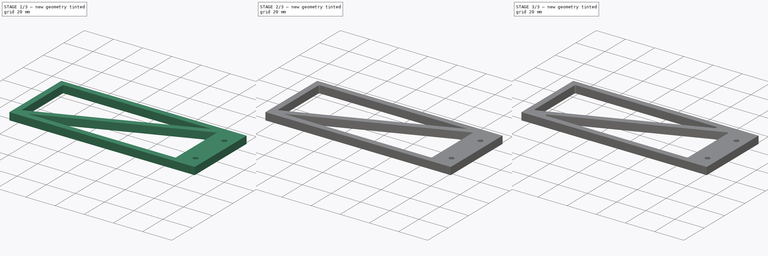
[diagram: build sequence overview — one tinted view per stage of 3, left to right]
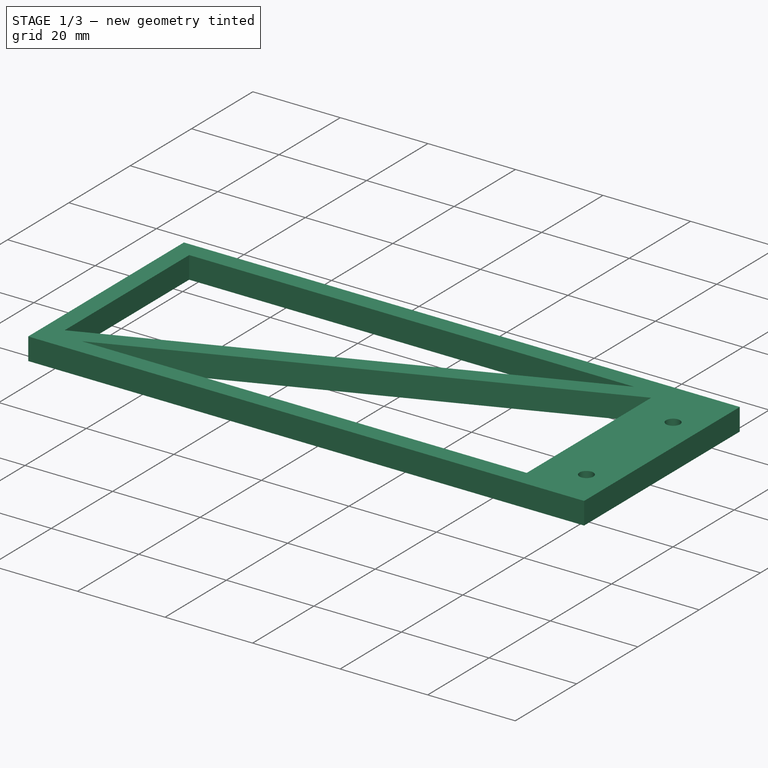
[diagram: stage 1 of 3 — iso view after this stage's code; geometry added in this stage tinted green]
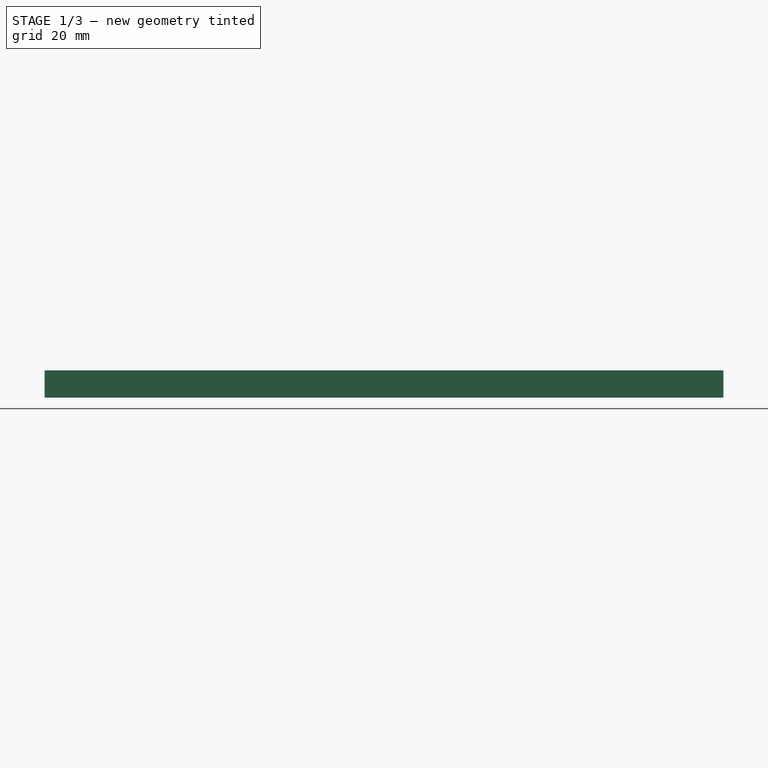
[diagram: stage 1 of 3 — front view after this stage's code; geometry added in this stage tinted green]
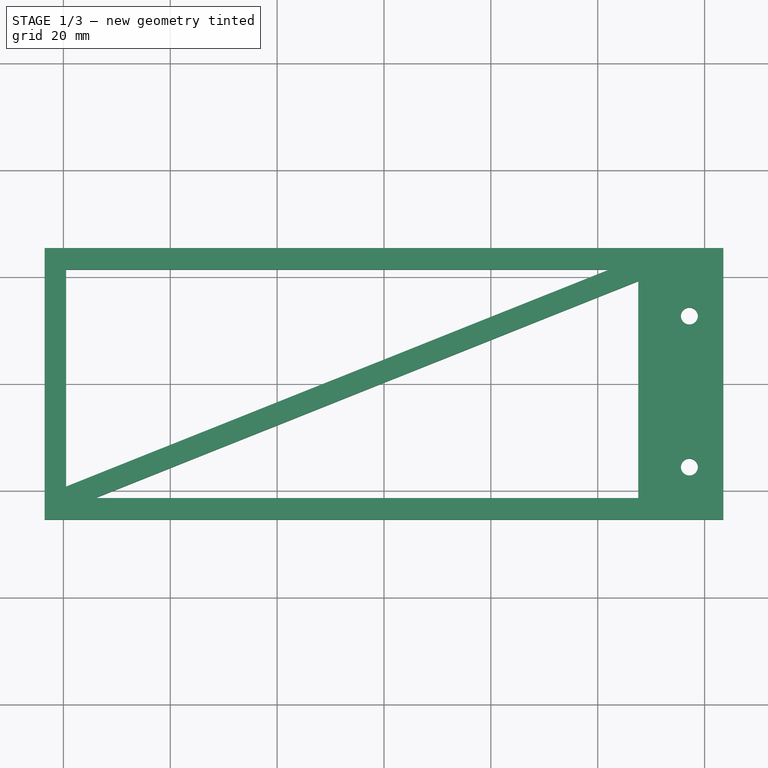
[diagram: stage 1 of 3 — top view after this stage's code; geometry added in this stage tinted green]
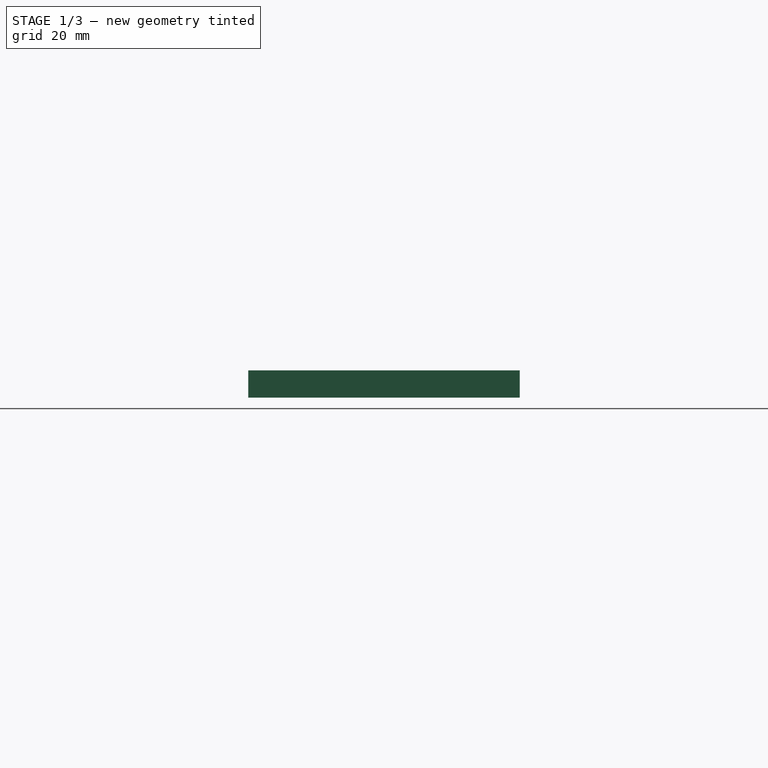
[diagram: stage 1 of 3 — right view after this stage's code; geometry added in this stage tinted green]
FCSTD DOCUMENT  (FreeCAD 1.0R39109 (Git))
Label: side_base
License: All rights reserved
LicenseURL: http://en.wikipedia.org/wiki/All_rights_reserved
objects: PartDesign::Fillet×3, Sketcher::SketchObject×2, PartDesign::Pad×1, PartDesign::Pocket×1, PartDesign::Body×1
note: 20 computed .brp shape members not serialized (recipe doc carries the construction recipe); baked Part::Feature solids carry a one-line shape summary decoded from their .brp

FEATURE [Sketcher::SketchObject] Sketch
  ArcFitTolerance = 1e-06
  AttachmentSupport = -> [XY_Plane]
  FullyConstrained = true
  MakeInternals = false
  MapMode = 5
  sketch-geometry (5):
    g0: LineSegment StartX=-63.5 StartY=-25.4 StartZ=0 EndX=63.5 EndY=-25.4 EndZ=0
    g1: LineSegment StartX=63.5 StartY=-25.4 StartZ=0 EndX=63.5 EndY=25.4 EndZ=0
    g2: LineSegment StartX=63.5 StartY=25.4 StartZ=0 EndX=-63.5 EndY=25.4 EndZ=0
    g3: LineSegment StartX=-63.5 StartY=25.4 StartZ=0 EndX=-63.5 EndY=-25.4 EndZ=0
    g4: GeomPoint [constr] X=0 Y=0 Z=0
  constraints (12):
    c: Coincident(g0,g1)
    c: Coincident(g1,g2)
    c: Coincident(g2,g3)
    c: Coincident(g3,g0)
    c: Horizontal(g0)
    c: Horizontal(g2)
    c: Vertical(g1)
    c: Vertical(g3)
    c: Symmetric(g2,g0,g4)
    c: Distance(g1,g3) = 127
    c: Distance(g0,g2) = 50.8
    c: Coincident(g4,g-1)
FEATURE [PartDesign::Pad] Pad
  Direction = (0,0,1)
  Length = 5.08
  Length2 = 10
  Profile = -> Sketch
  ReferenceAxis = -> Sketch [N_Axis]
  Suppressed = false
  Type = 0
FEATURE [Sketcher::SketchObject] Sketch001
  ArcFitTolerance = 1e-06
  AttachmentSupport = -> [Pad]
  ExternalGeometry = -> [Pad]
  FullyConstrained = false
  MakeInternals = false
  MapMode = 5
  Placement = pos=(0,0,5.08) rot=(0,0,1;0rad)
  sketch-geometry (19):
    g0: LineSegment [constr] StartX=63.5 StartY=-25.4 StartZ=0 EndX=57.15 EndY=-25.4 EndZ=0
    g1: LineSegment [constr] StartX=57.15 StartY=-25.4 StartZ=0 EndX=57.15 EndY=-15.5673 EndZ=0
    g2: LineSegment [constr] StartX=57.15 StartY=-15.5673 StartZ=0 EndX=57.15 EndY=12.7 EndZ=0
    g3: LineSegment [constr] StartX=57.15 StartY=12.7 StartZ=0 EndX=57.15 EndY=25.4 EndZ=0
    g4: Circle CenterX=57.15 CenterY=12.7 CenterZ=0 NormalX=0 NormalY=0 NormalZ=1 AngleXU=0 Radius=1.5875
    g5: Circle CenterX=57.15 CenterY=-15.5673 CenterZ=0 NormalX=0 NormalY=0 NormalZ=1 AngleXU=0 Radius=1.5875
    g6: LineSegment [constr] StartX=57.15 StartY=-25.4 StartZ=0 EndX=51.5983 EndY=-25.4 EndZ=0
    g7: LineSegment [constr] StartX=51.5983 StartY=-25.4 StartZ=0 EndX=47.5851 EndY=-21.1328 EndZ=0
    g8: LineSegment [constr] StartX=-63.5 StartY=-25.4 StartZ=0 EndX=-59.4868 EndY=-21.3868 EndZ=0
    g9: LineSegment [constr] StartX=-63.5 StartY=25.4 StartZ=0 EndX=-59.4868 EndY=21.3868 EndZ=0
    g10: LineSegment [constr] StartX=47.5851 StartY=-21.1328 StartZ=0 EndX=47.5851 EndY=19.226 EndZ=0
    g11: LineSegment [constr] StartX=47.5851 StartY=25.4 StartZ=0 EndX=47.5851 EndY=21.3868 EndZ=0
    g12: LineSegment StartX=-54.0779 StartY=-21.3868 StartZ=0 EndX=47.5851 EndY=-21.3868 EndZ=0
    g13: LineSegment StartX=47.5851 StartY=-21.3868 StartZ=0 EndX=47.5851 EndY=19.226 EndZ=0
    g14: LineSegment StartX=42.1761 StartY=21.3868 StartZ=0 EndX=-59.4868 EndY=21.3868 EndZ=0
    g15: LineSegment StartX=-59.4868 StartY=21.3868 StartZ=0 EndX=-59.4868 EndY=-19.226 EndZ=0
    g16: LineSegment StartX=-59.4868 StartY=-19.226 StartZ=0 EndX=42.1761 EndY=21.3868 EndZ=0
    g17: LineSegment StartX=-54.0779 StartY=-21.3868 StartZ=0 EndX=47.5851 EndY=19.226 EndZ=0
    g18: LineSegment [constr] StartX=47.5851 StartY=21.3868 StartZ=0 EndX=47.5851 EndY=25.4 EndZ=0
  constraints (47):
    c: Distance(g0) = 6.35
    c: Coincident(g0,g-5)
    c: PointOnObject(g0,g-5)
    c: Coincident(g1,g0)
    c: Vertical(g1)
    c: Block(g1)
    c: Coincident(g2,g1)
    c: Vertical(g2)
    c: Coincident(g3,g2)
    c: PointOnObject(g3,g-3)
    c: Vertical(g3)
    c: DistanceY(g3,g3) = 12.7
    c: Diameter(g4) = 3.175
    c: Coincident(g4,g2)
    c: Diameter(g5) = 3.175
    c: Coincident(g5,g1)
    c: Coincident(g6,g0)
    c: Horizontal(g6)
    c: Block(g6)
    c: DistanceX(g7,g7) = 4.0132
    c: DistanceY(g7,g7) = 4.2672
    c: Coincident(g7,g6)
    c: DistanceX(g8,g8) = 4.0132
    c: DistanceY(g8,g8) = 4.0132
    c: Coincident(g8,g-5)
    c: DistanceX(g9,g9) = 4.0132
    c: DistanceY(g9,g9) = 4.0132
    c: Coincident(g9,g-3)
    c: Coincident(g10,g7)
    c: PointOnObject(g18,g-3)
    c: Vertical(g10)
    c: DistanceX(g11,g11) = 0
    c: DistanceY(g11,g11) = 4.0132
    c: Coincident(g11,g18)
    c: Coincident(g12,g13)
    c: Coincident(g14,g15)
    c: Horizontal(g12)
    c: Horizontal(g14)
    c: Vertical(g13)
    c: Vertical(g15)
    c: PointOnObject(g17,g10)
    c: PointOnObject(g13,g17)
    c: Coincident(g12,g17)
    c: Coincident(g15,g16)
    c: Coincident(g14,g16)
    c: PointOnObject(g10,g13)
    c: PointOnObject(g18,g11)
FEATURE [PartDesign::Pocket] Pocket
  BaseFeature = -> Pad
  Direction = (0,0,-1)
  Length = 5
  Length2 = 5
  Profile = -> Sketch001
  ReferenceAxis = -> Sketch001 [N_Axis]
  Suppressed = false
  Type = 1
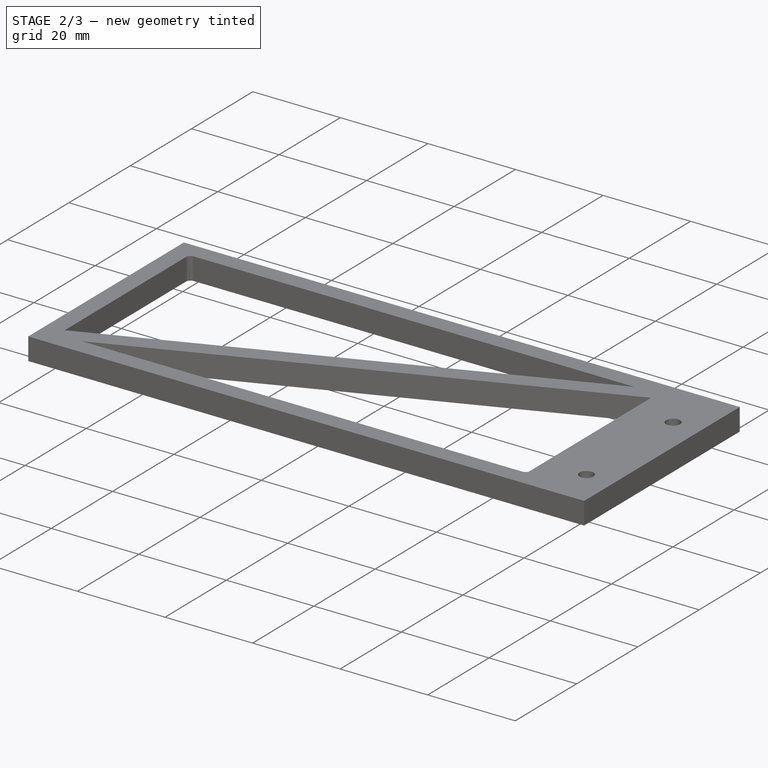
[diagram: stage 2 of 3 — iso view after this stage's code; geometry added in this stage tinted green]
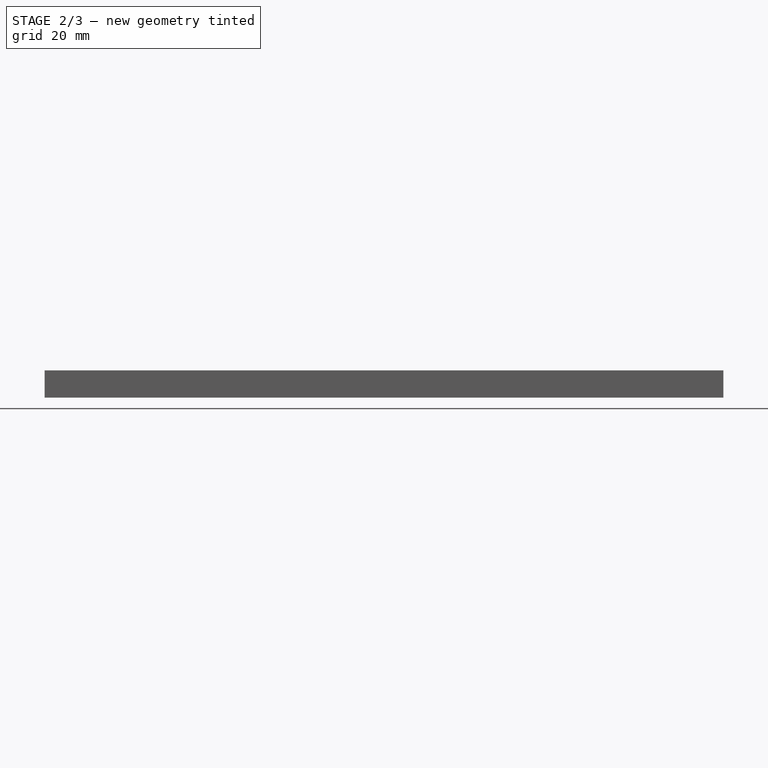
[diagram: stage 2 of 3 — front view after this stage's code; geometry added in this stage tinted green]
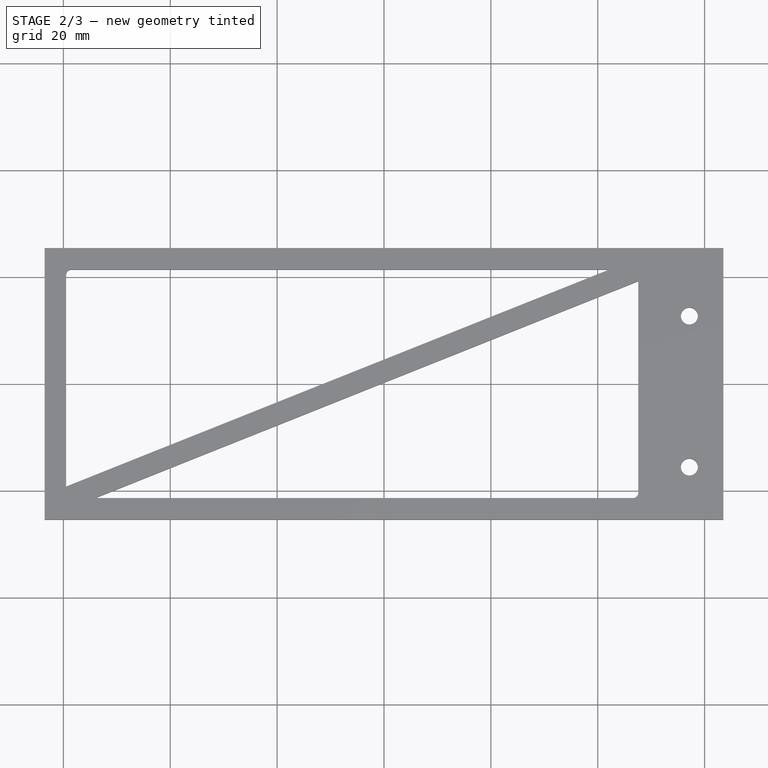
[diagram: stage 2 of 3 — top view after this stage's code; geometry added in this stage tinted green]
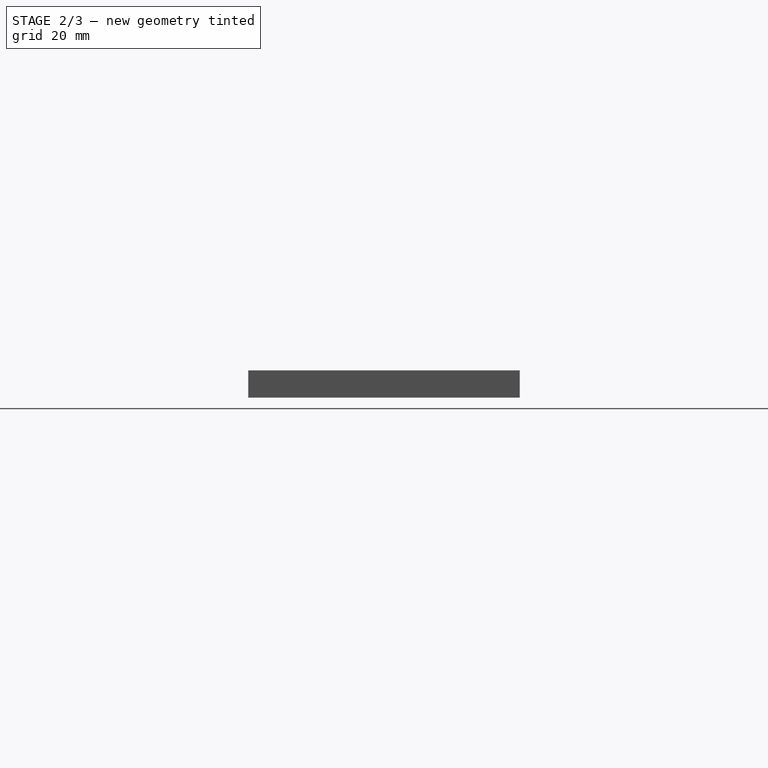
[diagram: stage 2 of 3 — right view after this stage's code; geometry added in this stage tinted green]
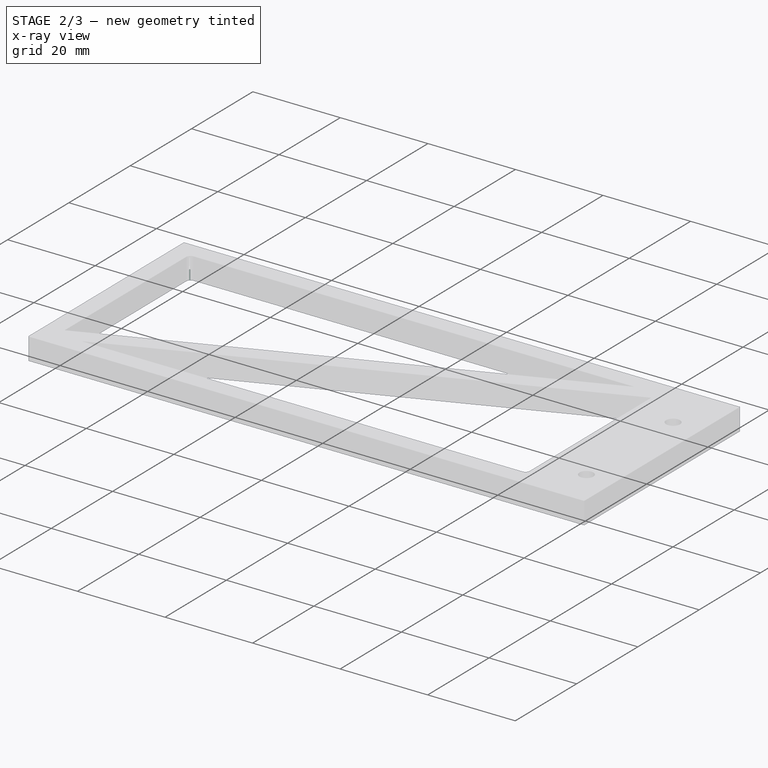
[diagram: stage 2 of 3 — x-ray composite at the iso view; earlier geometry ghosted, this stage's added geometry solid]
FEATURE [PartDesign::Fillet] Fillet
  Base = -> Pocket [Edge33,Edge29]
  BaseFeature = -> Pocket
  Radius = 0.999998
  SupportTransform = false
  Suppressed = false
  UseAllEdges = false
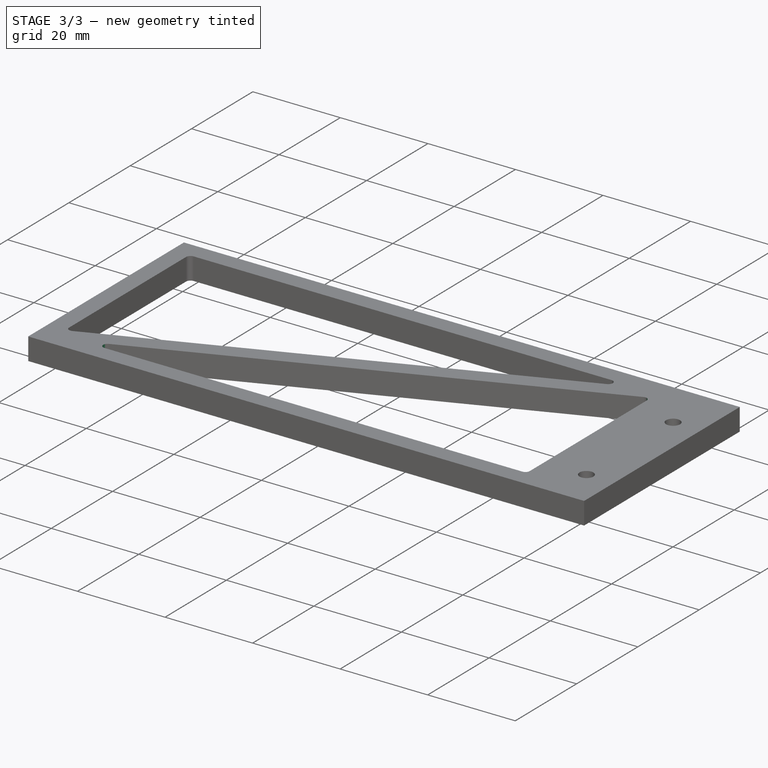
[diagram: stage 3 of 3 — iso view after this stage's code; geometry added in this stage tinted green]
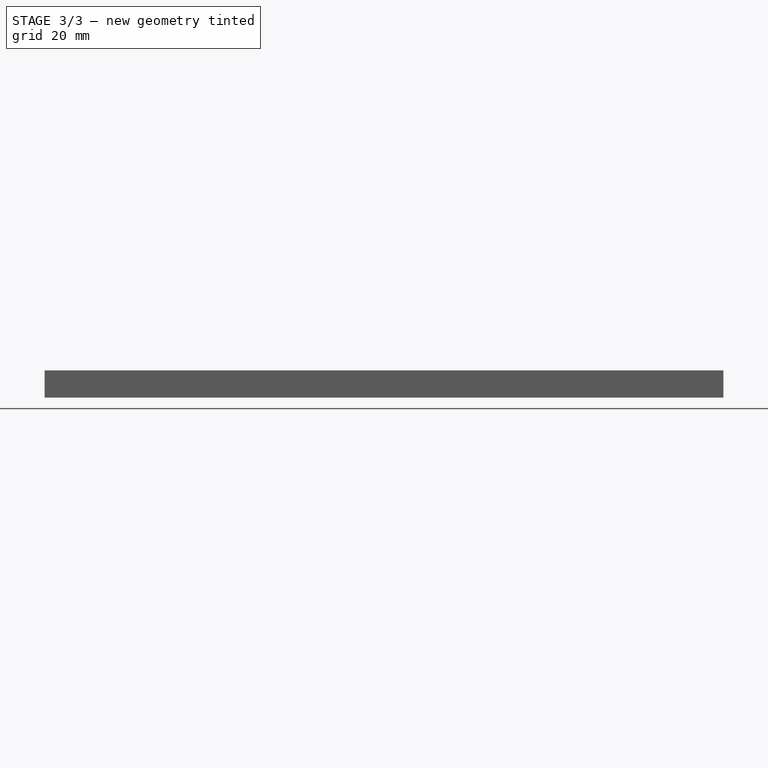
[diagram: stage 3 of 3 — front view after this stage's code; geometry added in this stage tinted green]
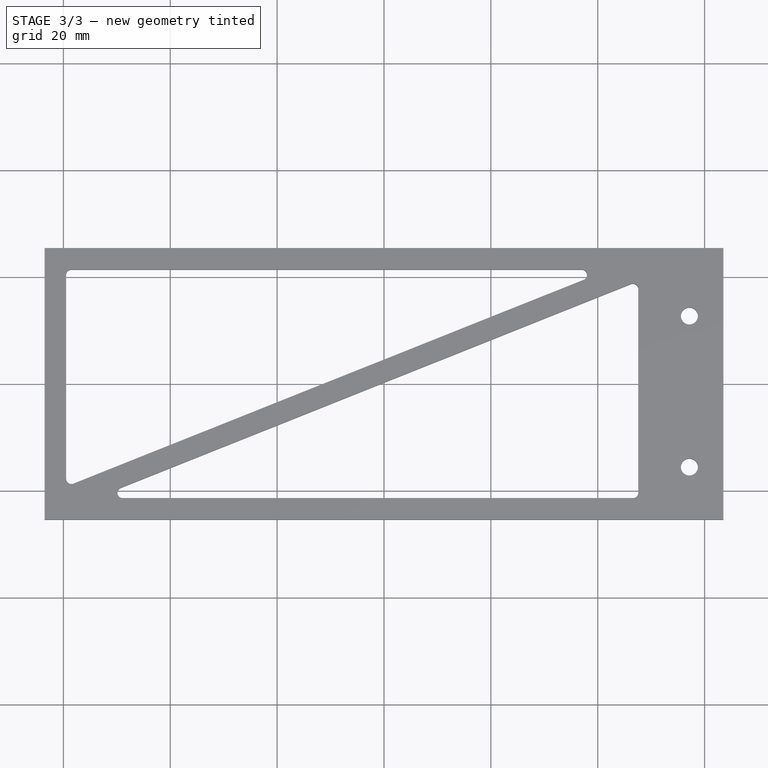
[diagram: stage 3 of 3 — top view after this stage's code; geometry added in this stage tinted green]
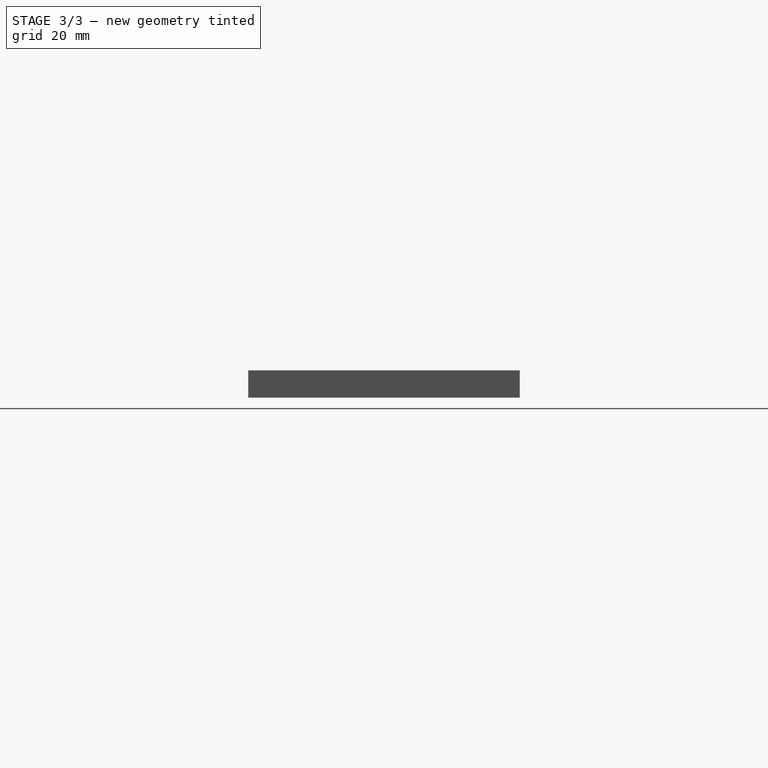
[diagram: stage 3 of 3 — right view after this stage's code; geometry added in this stage tinted green]
FEATURE [PartDesign::Fillet] Fillet001
  Base = -> Fillet [Edge17,Edge37]
  BaseFeature = -> Fillet
  Radius = 0.999998
  SupportTransform = false
  Suppressed = false
  UseAllEdges = false
FEATURE [PartDesign::Fillet] Fillet002
  Base = -> Fillet001 [Edge25,Edge47]
  BaseFeature = -> Fillet001
  Radius = 0.999998
  SupportTransform = false
  Suppressed = false
  UseAllEdges = false
FEATURE [PartDesign::Body] Body
  AllowCompound = false
  Group = -> [Sketch,Pad,Sketch001,Pocket,Fillet,Fillet001,Fillet002]
  Origin = -> Origin
  Tip = -> Fillet002
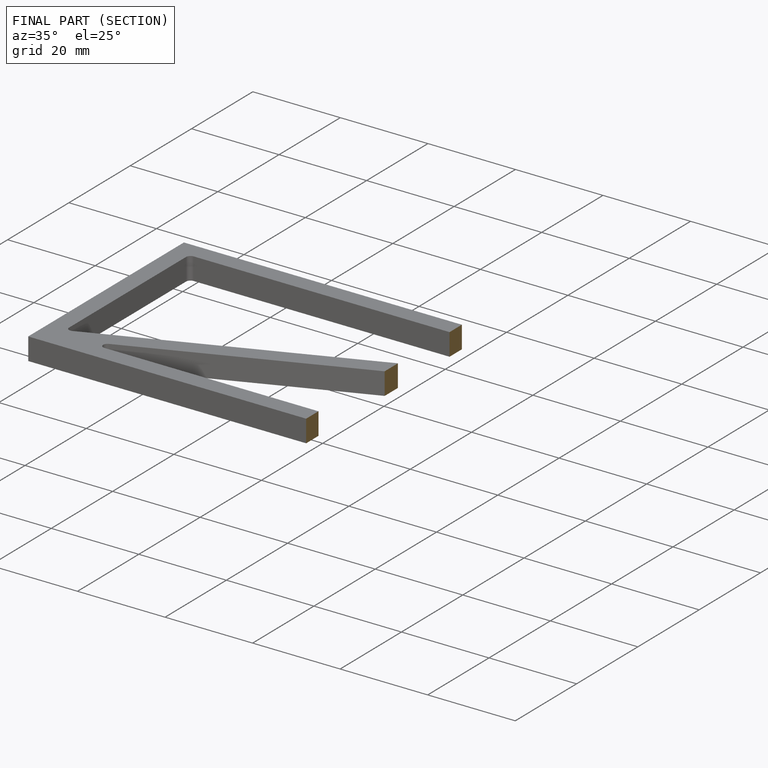
[diagram: finished part — half-section view (interior)]
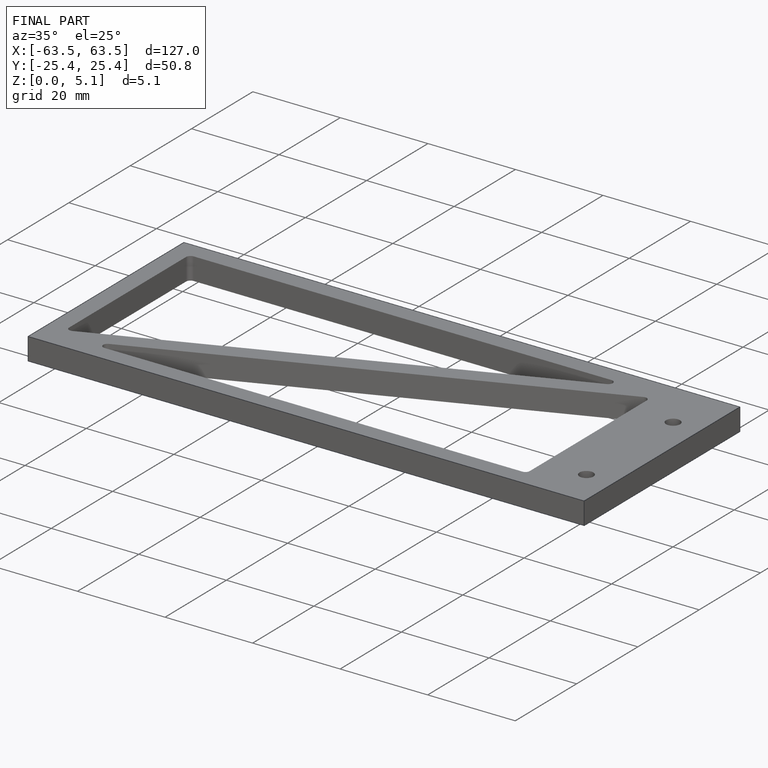
[diagram: finished part — iso view with bounding-box wireframe]
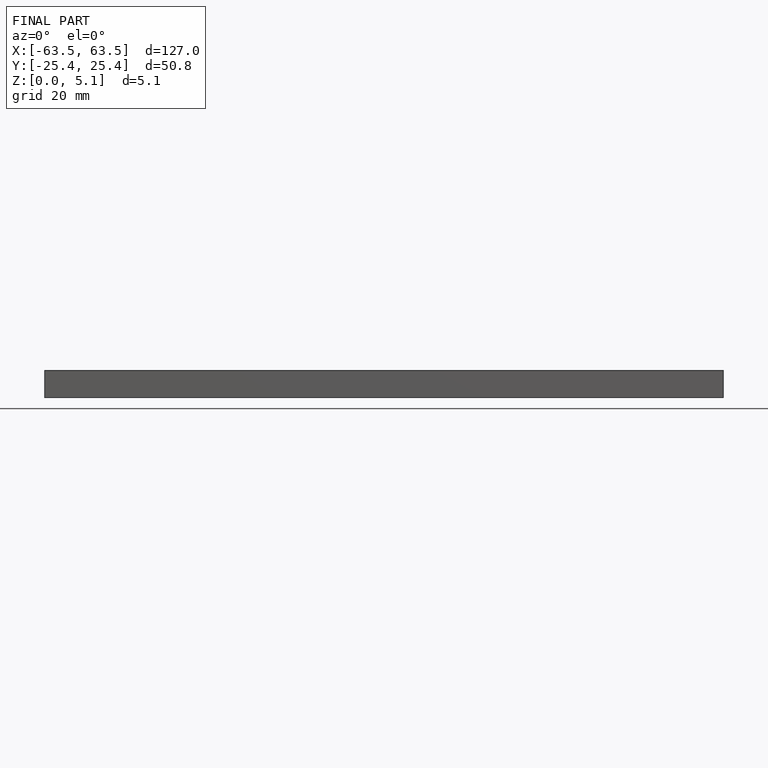
[diagram: finished part — front view with bounding-box wireframe]
